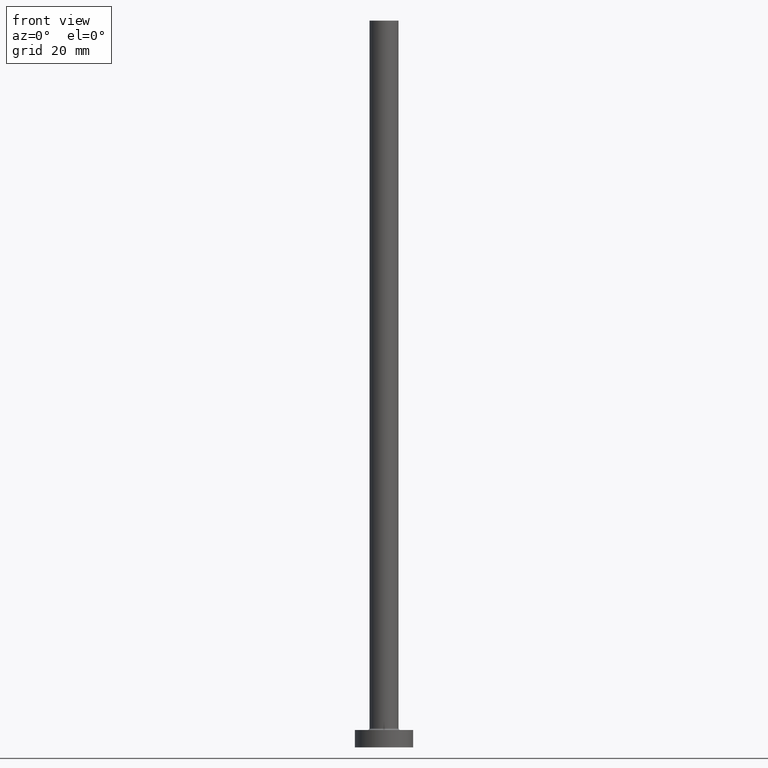
[diagram: clean part render]
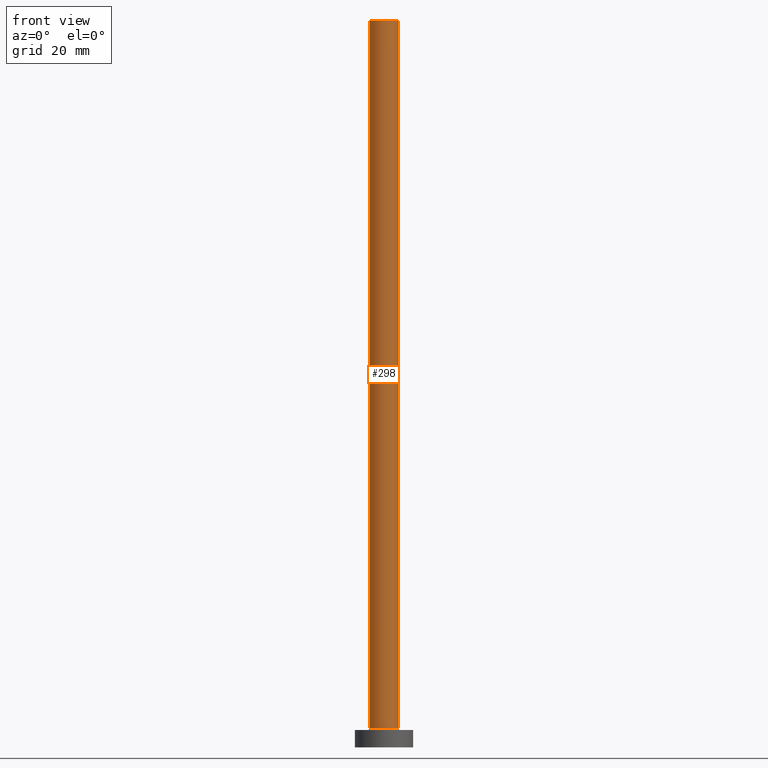
[diagram: same view with one face highlighted and labeled with its STEP entity id]
A machine part, front view. The second image highlights one B-rep face of the part: STEP entity #298.
In plain terms, the highlighted cylindrical surface (edge-blend (fillet) strip) has radius 2.5 mm, axis along (-0, -0, -1).
Its self-contained STEP definition (entity closure, byte-faithful):
#3 = AXIS2_PLACEMENT_3D ( 'NONE', #445, #434, #114 ) ;
#34 = CARTESIAN_POINT ( 'NONE',  ( -2.500000000000000000, 0.000000000000000000, 3.299999999999997158 ) ) ;
#38 = DIRECTION ( 'NONE',  ( -0.000000000000000000, -0.000000000000000000, -1.000000000000000000 ) ) ;
#40 = DIRECTION ( 'NONE',  ( 0.000000000000000000, 0.000000000000000000, 1.000000000000000000 ) ) ;
#51 = CARTESIAN_POINT ( 'NONE',  ( 0.000000000000000000, 0.000000000000000000, 125.0000000000000000 ) ) ;
#52 = VERTEX_POINT ( 'NONE', #176 ) ;
#70 = CIRCLE ( 'NONE', #169, 2.500000000000000000 ) ;
#80 = EDGE_CURVE ( 'NONE', #306, #132, #109, .T. ) ;
#94 = VECTOR ( 'NONE', #38, 1000.000000000000000 ) ;
#97 = EDGE_CURVE ( 'NONE', #443, #52, #284, .T. ) ;
#109 = LINE ( 'NONE', #397, #280 ) ;
#114 = DIRECTION ( 'NONE',  ( -1.000000000000000000, 0.000000000000000000, 0.000000000000000000 ) ) ;
#118 = CARTESIAN_POINT ( 'NONE',  ( 0.000000000000000000, 0.000000000000000000, 3.299999999999997158 ) ) ;
#124 = ORIENTED_EDGE ( 'NONE', *, *, #80, .T. ) ;
#132 = VERTEX_POINT ( 'NONE', #34 ) ;
#143 = DIRECTION ( 'NONE',  ( -0.000000000000000000, -0.000000000000000000, -1.000000000000000000 ) ) ;
#145 = FACE_OUTER_BOUND ( 'NONE', #381, .T. ) ;
#147 = EDGE_CURVE ( 'NONE', #132, #52, #70, .T. ) ;
#169 = AXIS2_PLACEMENT_3D ( 'NONE', #118, #40, #260 ) ;
#173 = CARTESIAN_POINT ( 'NONE',  ( 2.500000000000000000, 3.061616997868382648E-16, 125.0000000000000000 ) ) ;
#176 = CARTESIAN_POINT ( 'NONE',  ( 2.500000000000000000, 3.061616997868382648E-16, 3.299999999999997158 ) ) ;
#194 = DIRECTION ( 'NONE',  ( 0.000000000000000000, 0.000000000000000000, 1.000000000000000000 ) ) ;
#239 = ORIENTED_EDGE ( 'NONE', *, *, #345, .F. ) ;
#260 = DIRECTION ( 'NONE',  ( 1.000000000000000000, 0.000000000000000000, 0.000000000000000000 ) ) ;
#263 = CIRCLE ( 'NONE', #438, 2.500000000000000000 ) ;
#272 = DIRECTION ( 'NONE',  ( 1.000000000000000000, 0.000000000000000000, 0.000000000000000000 ) ) ;
#280 = VECTOR ( 'NONE', #143, 1000.000000000000000 ) ;
#284 = LINE ( 'NONE', #173, #94 ) ;
#298 = ADVANCED_FACE ( 'NONE', ( #145 ), #301, .T. ) ;
#301 = CYLINDRICAL_SURFACE ( 'NONE', #3, 2.500000000000000000 ) ;
#306 = VERTEX_POINT ( 'NONE', #461 ) ;
#345 = EDGE_CURVE ( 'NONE', #306, #443, #263, .T. ) ;
#350 = ORIENTED_EDGE ( 'NONE', *, *, #97, .F. ) ;
#352 = ORIENTED_EDGE ( 'NONE', *, *, #147, .T. ) ;
#381 = EDGE_LOOP ( 'NONE', ( #350, #239, #124, #352 ) ) ;
#397 = CARTESIAN_POINT ( 'NONE',  ( -2.500000000000000000, 0.000000000000000000, 125.0000000000000000 ) ) ;
#412 = CARTESIAN_POINT ( 'NONE',  ( 2.500000000000000000, 3.061616997868382648E-16, 125.0000000000000000 ) ) ;
#434 = DIRECTION ( 'NONE',  ( -0.000000000000000000, -0.000000000000000000, -1.000000000000000000 ) ) ;
#438 = AXIS2_PLACEMENT_3D ( 'NONE', #51, #194, #272 ) ;
#443 = VERTEX_POINT ( 'NONE', #412 ) ;
#445 = CARTESIAN_POINT ( 'NONE',  ( 0.000000000000000000, 0.000000000000000000, 125.0000000000000000 ) ) ;
#461 = CARTESIAN_POINT ( 'NONE',  ( -2.500000000000000000, 0.000000000000000000, 125.0000000000000000 ) ) ;